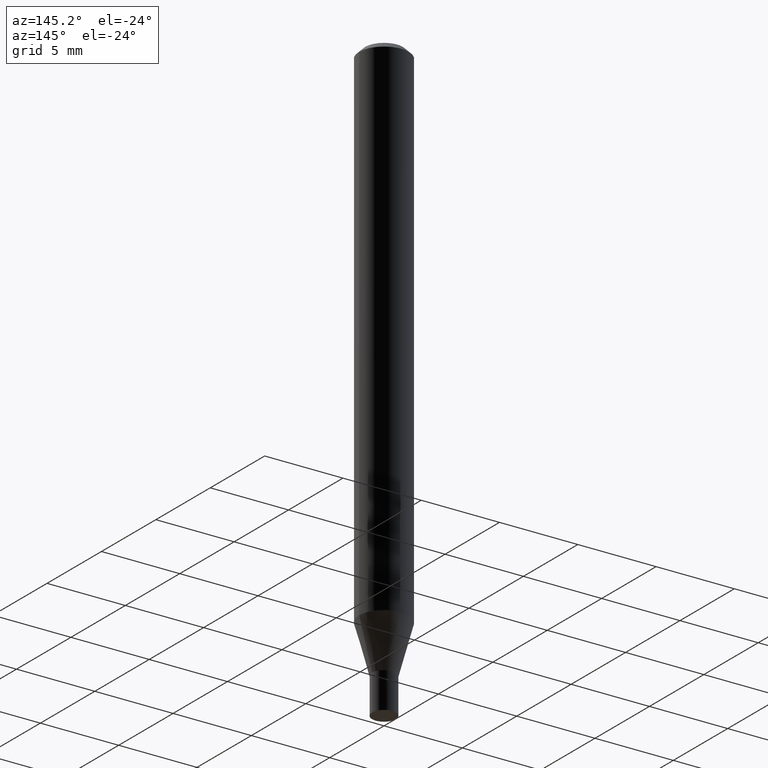
[diagram: clean part render]
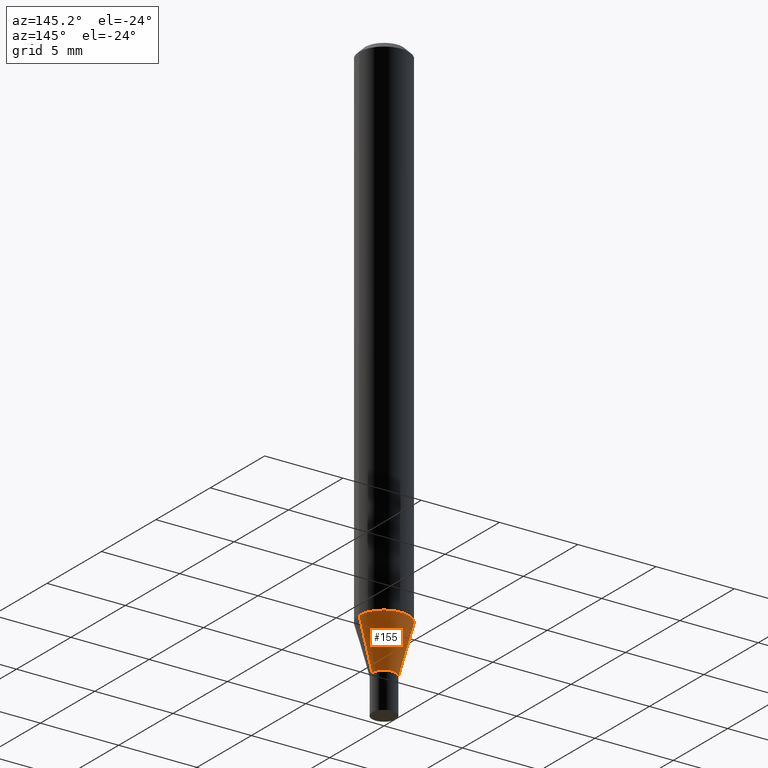
[diagram: same view with one face highlighted and labeled with its STEP entity id]
A machine part, auxiliary view. The second image highlights one B-rep face of the part: STEP entity #155.
In plain terms, the highlighted conical surface has half-angle 15 deg.
Its self-contained STEP definition (entity closure, byte-faithful):
#7 = AXIS2_PLACEMENT_3D ( 'NONE', #324, #80, #250 ) ;
#29 = ORIENTED_EDGE ( 'NONE', *, *, #377, .F. ) ;
#44 = ORIENTED_EDGE ( 'NONE', *, *, #438, .F. ) ;
#48 = DIRECTION ( 'NONE',  ( 0.2588190451025213501, 1.565188264969621968E-15, 0.9659258262890682012 ) ) ;
#52 = DIRECTION ( 'NONE',  ( 1.000000000000000000, -6.982962677686254878E-15, 0.000000000000000000 ) ) ;
#60 = DIRECTION ( 'NONE',  ( -2.445468806185136597E-29, 3.491481338843145583E-15, 1.000000000000000000 ) ) ;
#65 = AXIS2_PLACEMENT_3D ( 'NONE', #188, #60, #410 ) ;
#80 = DIRECTION ( 'NONE',  ( -2.445468806185136597E-29, 3.491481338843145583E-15, 1.000000000000000000 ) ) ;
#100 = CARTESIAN_POINT ( 'NONE',  ( 0.06250000000000000000, -4.935936318241394126E-15, -1.288708348754013633 ) ) ;
#102 = CONICAL_SURFACE ( 'NONE', #388, 0.03000000000000047420, 0.2617993877991500740 ) ;
#119 = VERTEX_POINT ( 'NONE', #319 ) ;
#125 = DIRECTION ( 'NONE',  ( -0.2588190451025213501, 5.211531920934551042E-15, 0.9659258262890682012 ) ) ;
#139 = FACE_OUTER_BOUND ( 'NONE', #335, .T. ) ;
#155 = ADVANCED_FACE ( 'NONE', ( #139 ), #102, .T. ) ;
#165 = CIRCLE ( 'NONE', #7, 0.03000000000000047420 ) ;
#166 = ORIENTED_EDGE ( 'NONE', *, *, #372, .T. ) ;
#186 = CARTESIAN_POINT ( 'NONE',  ( 0.03000000000000047420, -5.132477568099426385E-15, -1.409999999999999920 ) ) ;
#188 = CARTESIAN_POINT ( 'NONE',  ( 3.151496067148295806E-29, -4.499501150886003245E-15, -1.288708348754013633 ) ) ;
#230 = LINE ( 'NONE', #186, #261 ) ;
#250 = DIRECTION ( 'NONE',  ( 1.000000000000000000, -6.982962677686254878E-15, 0.000000000000000000 ) ) ;
#260 = VERTEX_POINT ( 'NONE', #287 ) ;
#261 = VECTOR ( 'NONE', #48, 39.37007874015747433 ) ;
#265 = EDGE_CURVE ( 'NONE', #119, #260, #165, .T. ) ;
#278 = VECTOR ( 'NONE', #125, 39.37007874015747433 ) ;
#287 = CARTESIAN_POINT ( 'NONE',  ( -0.03000000000000047420, -4.382618904038371071E-15, -1.409999999999999920 ) ) ;
#296 = CIRCLE ( 'NONE', #65, 0.06250000000000000000 ) ;
#319 = CARTESIAN_POINT ( 'NONE',  ( 0.03000000000000047420, -5.132477568099426385E-15, -1.409999999999999920 ) ) ;
#324 = CARTESIAN_POINT ( 'NONE',  ( 3.448111016721042669E-29, -4.922988687768835701E-15, -1.409999999999999920 ) ) ;
#335 = EDGE_LOOP ( 'NONE', ( #390, #166, #44, #29 ) ) ;
#368 = CARTESIAN_POINT ( 'NONE',  ( -0.03000000000000047420, -4.709825867040802301E-15, -1.409999999999999920 ) ) ;
#372 = EDGE_CURVE ( 'NONE', #260, #409, #406, .T. ) ;
#377 = EDGE_CURVE ( 'NONE', #119, #444, #230, .T. ) ;
#388 = AXIS2_PLACEMENT_3D ( 'NONE', #439, #453, #52 ) ;
#390 = ORIENTED_EDGE ( 'NONE', *, *, #265, .T. ) ;
#406 = LINE ( 'NONE', #368, #278 ) ;
#409 = VERTEX_POINT ( 'NONE', #452 ) ;
#410 = DIRECTION ( 'NONE',  ( 1.000000000000000000, -6.982962677686262766E-15, 0.000000000000000000 ) ) ;
#438 = EDGE_CURVE ( 'NONE', #444, #409, #296, .T. ) ;
#439 = CARTESIAN_POINT ( 'NONE',  ( 3.448111016721042669E-29, -4.922988687768835701E-15, -1.409999999999999920 ) ) ;
#444 = VERTEX_POINT ( 'NONE', #100 ) ;
#452 = CARTESIAN_POINT ( 'NONE',  ( -0.06250000000000000000, -4.055411941035939840E-15, -1.288708348754013633 ) ) ;
#453 = DIRECTION ( 'NONE',  ( -2.445468806185136597E-29, 3.491481338843145583E-15, 1.000000000000000000 ) ) ;